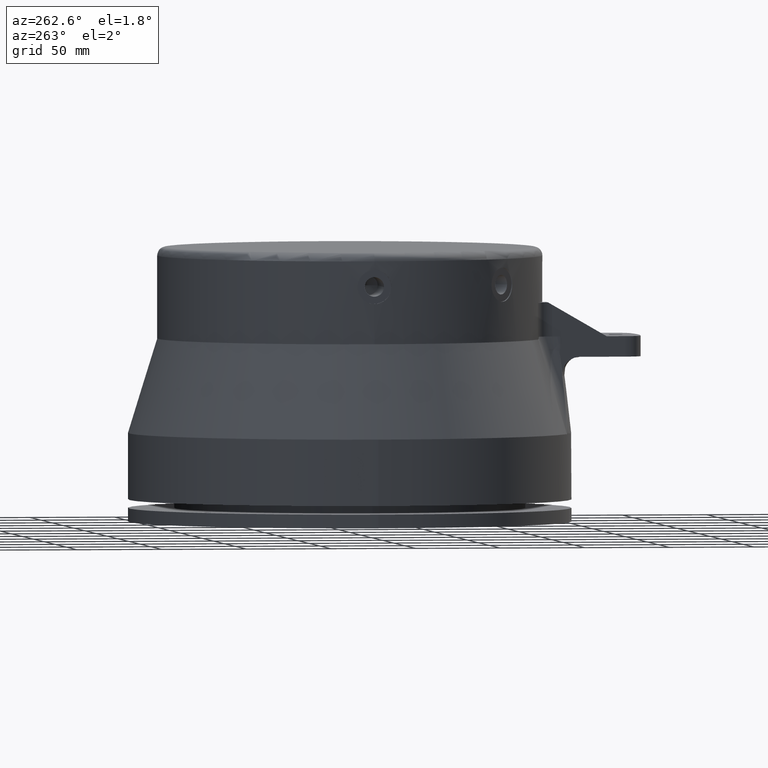
[diagram: clean part render]
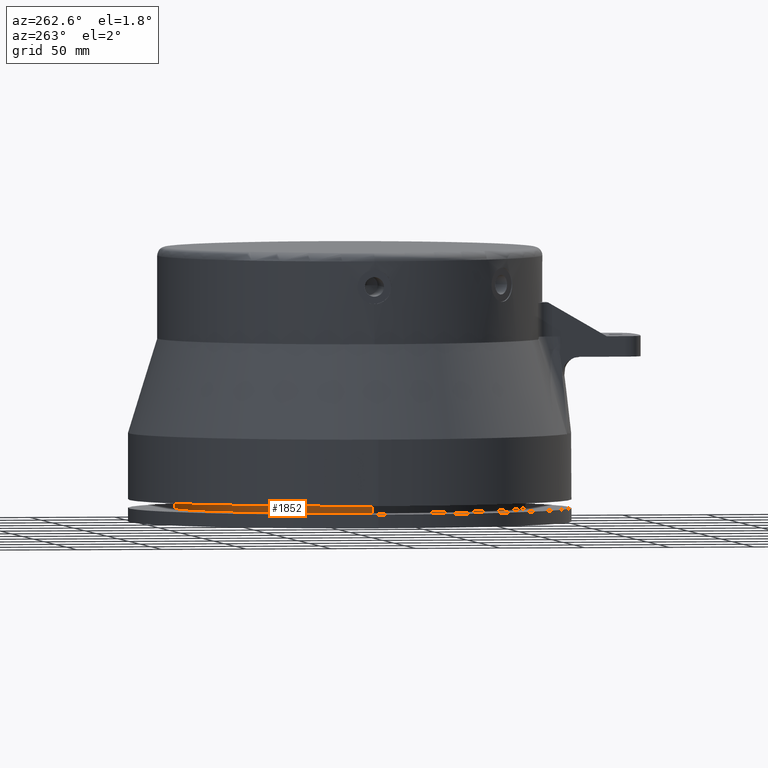
[diagram: same view with one face highlighted and labeled with its STEP entity id]
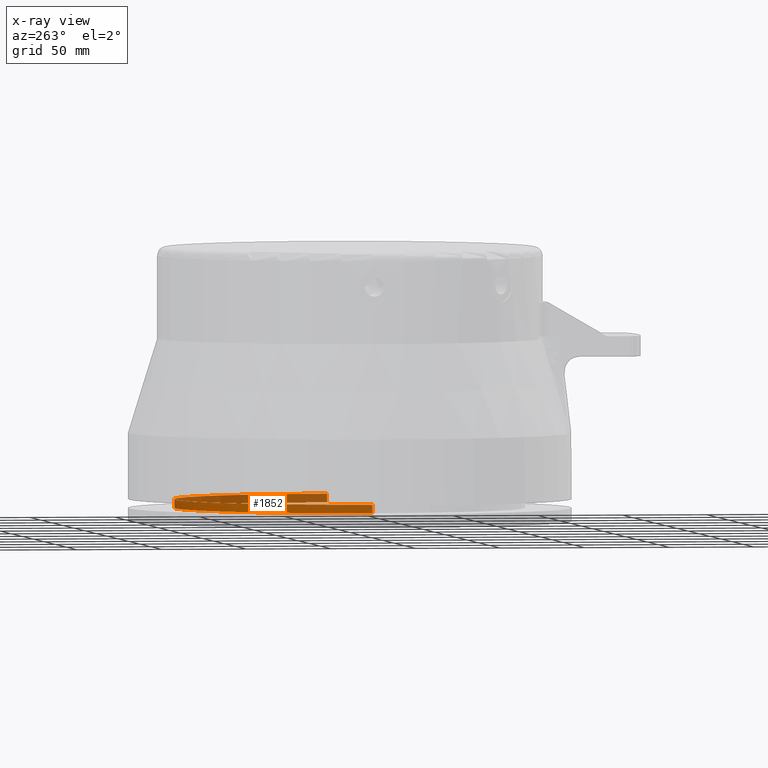
[diagram: x-ray of the same camera — body ghosted, the highlighted face saturated]
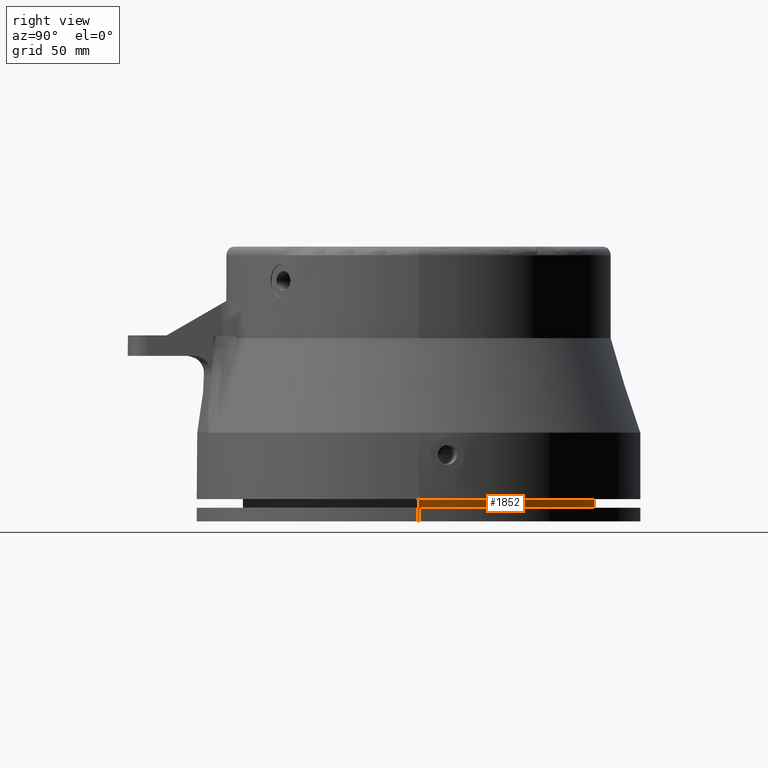
[diagram: same view with one face highlighted and labeled with its STEP entity id]
A machine part, auxiliary view. The second image highlights one B-rep face of the part: STEP entity #1852.
The next image is the same camera in x-ray: the body ghosted, the highlighted face saturated — about 42% of this face is hidden behind the body in this view.
A second angle (right view) of the same face is appended — the face is thin or edge-on in the first view.
In plain terms, the highlighted cylindrical surface (partial cylindrical patch) has radius 103 mm, axis along (0, 0, 1).
Its self-contained STEP definition (entity closure, byte-faithful):
#461=CARTESIAN_POINT('',(0.E0,0.E0,-1.53E2));
#462=DIRECTION('',(0.E0,0.E0,1.E0));
#463=DIRECTION('',(1.E0,0.E0,0.E0));
#464=AXIS2_PLACEMENT_3D('',#461,#462,#463);
#466=DIRECTION('',(0.E0,0.E0,1.E0));
#467=VECTOR('',#466,5.E0);
#468=CARTESIAN_POINT('',(1.03E2,0.E0,-1.53E2));
#469=LINE('',#468,#467);
#475=DIRECTION('',(0.E0,0.E0,1.E0));
#476=VECTOR('',#475,5.E0);
#477=CARTESIAN_POINT('',(-1.03E2,0.E0,-1.53E2));
#478=LINE('',#477,#476);
#484=CARTESIAN_POINT('',(0.E0,0.E0,-1.48E2));
#485=DIRECTION('',(0.E0,0.E0,1.E0));
#486=DIRECTION('',(1.E0,0.E0,0.E0));
#487=AXIS2_PLACEMENT_3D('',#484,#485,#486);
#1700=CARTESIAN_POINT('',(1.03E2,0.E0,-1.53E2));
#1701=CARTESIAN_POINT('',(1.03E2,0.E0,-1.48E2));
#1702=VERTEX_POINT('',#1700);
#1703=VERTEX_POINT('',#1701);
#1704=CARTESIAN_POINT('',(-1.03E2,0.E0,-1.53E2));
#1705=CARTESIAN_POINT('',(-1.03E2,0.E0,-1.48E2));
#1706=VERTEX_POINT('',#1704);
#1707=VERTEX_POINT('',#1705);
#1838=CARTESIAN_POINT('',(0.E0,0.E0,-1.5325E2));
#1839=DIRECTION('',(0.E0,0.E0,1.E0));
#1840=DIRECTION('',(-1.E0,0.E0,0.E0));
#1841=AXIS2_PLACEMENT_3D('',#1838,#1839,#1840);
#1842=CYLINDRICAL_SURFACE('',#1841,1.03E2);
#1844=ORIENTED_EDGE('',*,*,#1843,.T.);
#1846=ORIENTED_EDGE('',*,*,#1845,.T.);
#1848=ORIENTED_EDGE('',*,*,#1847,.F.);
#1849=ORIENTED_EDGE('',*,*,#1819,.F.);
#1850=EDGE_LOOP('',(#1844,#1846,#1848,#1849));
#1851=FACE_OUTER_BOUND('',#1850,.F.);
#465=CIRCLE('',#464,1.03E2);
#488=CIRCLE('',#487,1.03E2);
#1819=EDGE_CURVE('',#1702,#1706,#465,.T.);
#1843=EDGE_CURVE('',#1702,#1703,#469,.T.);
#1845=EDGE_CURVE('',#1703,#1707,#488,.T.);
#1847=EDGE_CURVE('',#1706,#1707,#478,.T.);
#1852=ADVANCED_FACE('',(#1851),#1842,.T.);